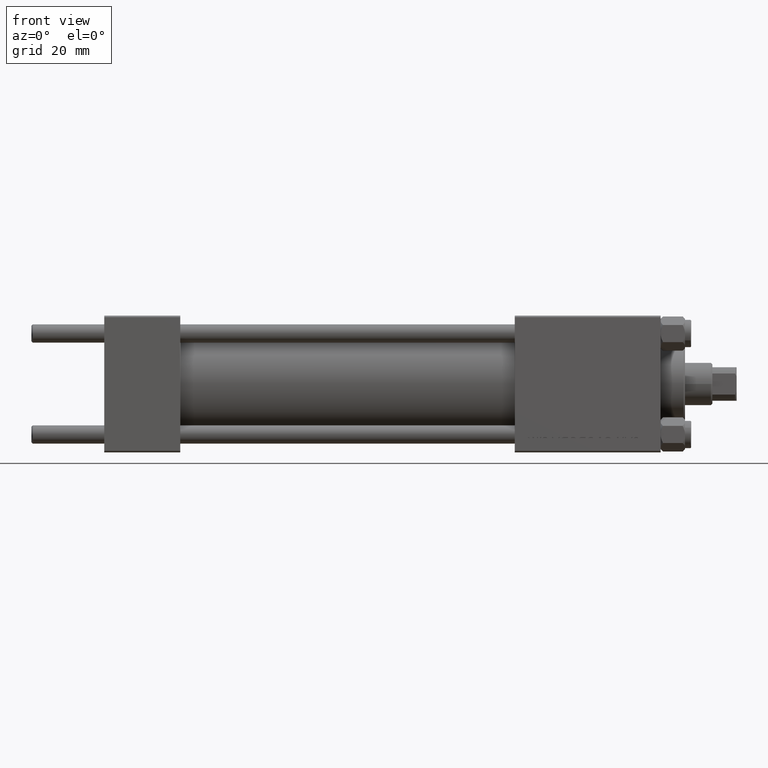
[diagram: clean part render]
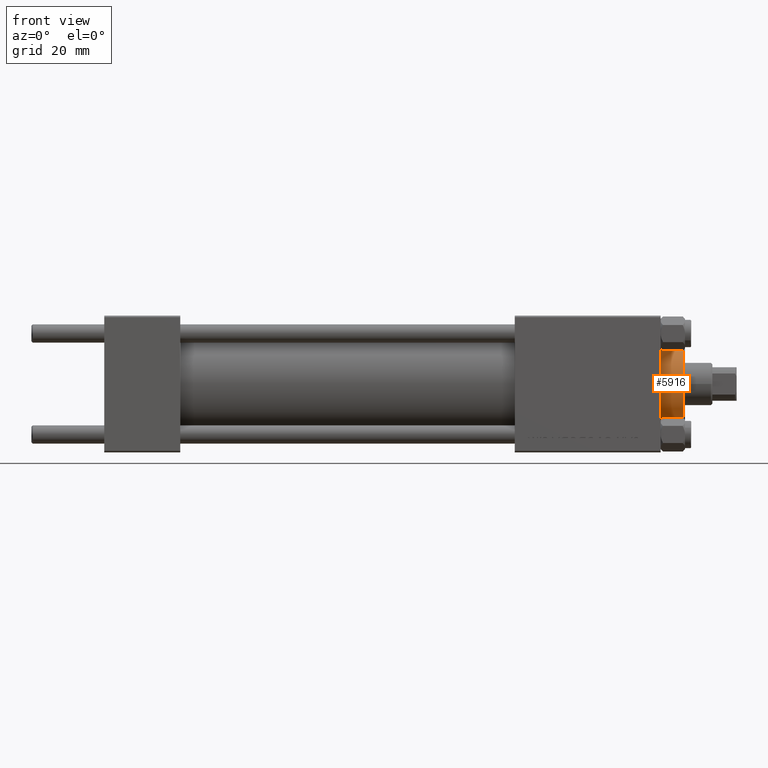
[diagram: same view with one face highlighted and labeled with its STEP entity id]
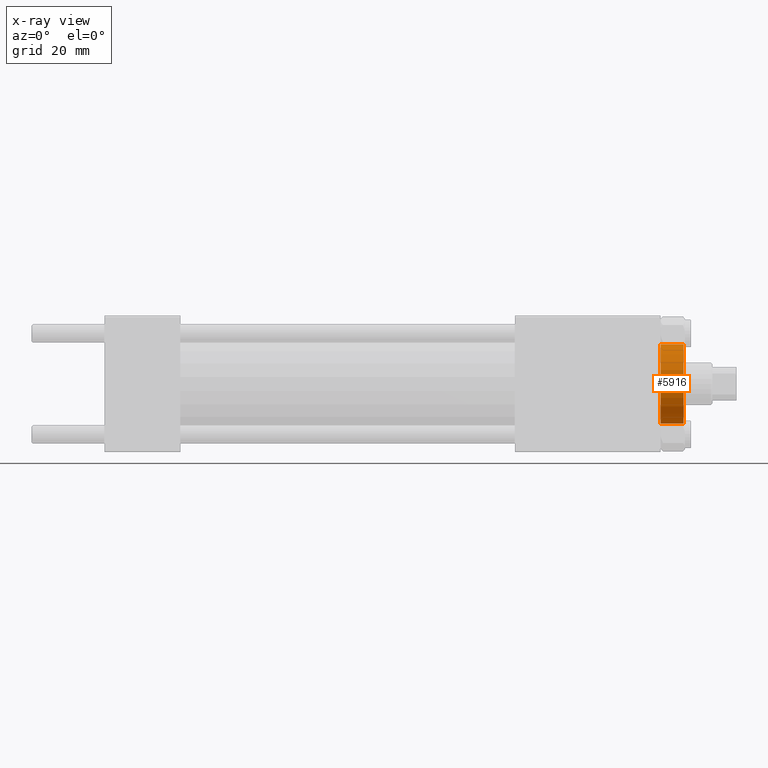
[diagram: x-ray of the same camera — body ghosted, the highlighted face saturated]
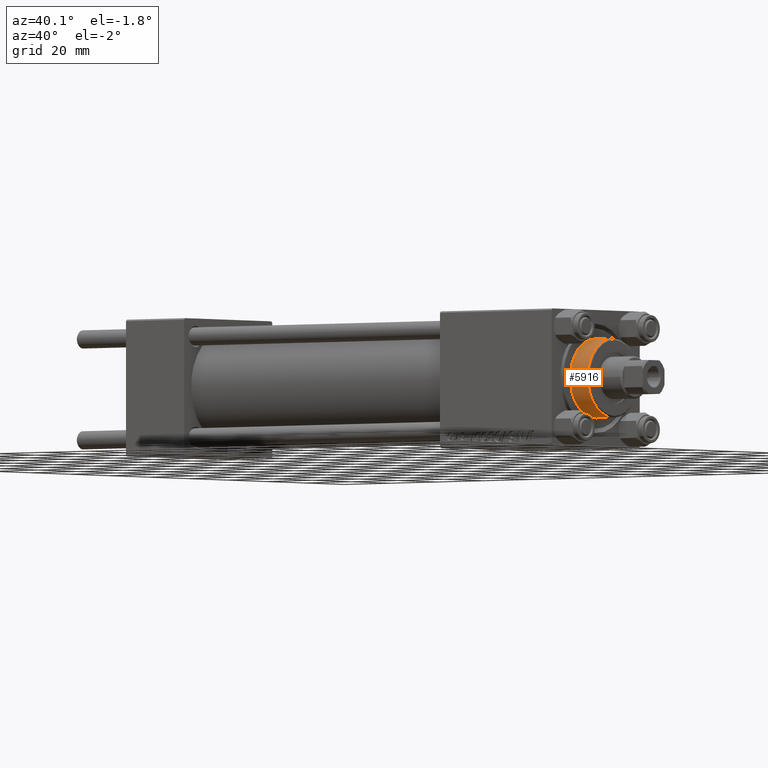
[diagram: same view with one face highlighted and labeled with its STEP entity id]
A machine part, front view. The second image highlights one B-rep face of the part: STEP entity #5916.
The next image is the same camera in x-ray: the body ghosted, the highlighted face saturated — about 0% of this face is hidden behind the body in this view.
A second angle (auxiliary view) of the same face is appended — the face is thin or edge-on in the first view.
In plain terms, the highlighted cylindrical surface (partial cylindrical patch) has radius 13 mm, axis along (-1, -0, 0).
Its self-contained STEP definition (entity closure, byte-faithful):
#1320 = CARTESIAN_POINT ( 'NONE',  ( 0.000000000000000000, 0.000000000000000000, 28.69999999999999929 ) ) ;
#2934 = ORIENTED_EDGE ( 'NONE', *, *, #22814, .T. ) ;
#3250 = FACE_OUTER_BOUND ( 'NONE', #13367, .T. ) ;
#3500 = DIRECTION ( 'NONE',  ( -1.000000000000000000, 0.000000000000000000, 0.000000000000000000 ) ) ;
#5916 = ADVANCED_FACE ( 'NONE', ( #3250 ), #19152, .T. ) ;
#6127 = CARTESIAN_POINT ( 'NONE',  ( 13.00000000000000178, 1.592040838891559293E-15, 36.69999999999999574 ) ) ;
#7917 = DIRECTION ( 'NONE',  ( -0.000000000000000000, -0.000000000000000000, -1.000000000000000000 ) ) ;
#8129 = ORIENTED_EDGE ( 'NONE', *, *, #19110, .T. ) ;
#9529 = VERTEX_POINT ( 'NONE', #31443 ) ;
#11561 = AXIS2_PLACEMENT_3D ( 'NONE', #1320, #47461, #12901 ) ;
#12063 = DIRECTION ( 'NONE',  ( -0.000000000000000000, -0.000000000000000000, -1.000000000000000000 ) ) ;
#12901 = DIRECTION ( 'NONE',  ( 1.000000000000000000, 0.000000000000000000, 0.000000000000000000 ) ) ;
#13367 = EDGE_LOOP ( 'NONE', ( #18118, #8129, #2934, #30946 ) ) ;
#13450 = DIRECTION ( 'NONE',  ( -0.000000000000000000, -0.000000000000000000, -1.000000000000000000 ) ) ;
#14013 = CIRCLE ( 'NONE', #11561, 13.00000000000000178 ) ;
#17273 = CARTESIAN_POINT ( 'NONE',  ( 0.000000000000000000, 0.000000000000000000, 36.20000000000000995 ) ) ;
#17458 = AXIS2_PLACEMENT_3D ( 'NONE', #18891, #12063, #3500 ) ;
#18118 = ORIENTED_EDGE ( 'NONE', *, *, #31565, .F. ) ;
#18891 = CARTESIAN_POINT ( 'NONE',  ( 0.000000000000000000, 0.000000000000000000, 36.69999999999999574 ) ) ;
#19110 = EDGE_CURVE ( 'NONE', #26548, #42038, #40455, .T. ) ;
#19152 = CYLINDRICAL_SURFACE ( 'NONE', #17458, 13.00000000000000178 ) ;
#20011 = CARTESIAN_POINT ( 'NONE',  ( -13.00000000000000178, 0.000000000000000000, 36.20000000000000995 ) ) ;
#22814 = EDGE_CURVE ( 'NONE', #42038, #9529, #29917, .T. ) ;
#25668 = EDGE_CURVE ( 'NONE', #9529, #47458, #14013, .T. ) ;
#26548 = VERTEX_POINT ( 'NONE', #48210 ) ;
#29917 = LINE ( 'NONE', #42940, #46908 ) ;
#30946 = ORIENTED_EDGE ( 'NONE', *, *, #25668, .T. ) ;
#31443 = CARTESIAN_POINT ( 'NONE',  ( -13.00000000000000178, 0.000000000000000000, 28.69999999999999929 ) ) ;
#31565 = EDGE_CURVE ( 'NONE', #26548, #47458, #48244, .T. ) ;
#32648 = DIRECTION ( 'NONE',  ( 1.000000000000000000, 0.000000000000000000, 0.000000000000000000 ) ) ;
#34510 = CARTESIAN_POINT ( 'NONE',  ( 13.00000000000000178, 1.592040838891559293E-15, 28.69999999999999929 ) ) ;
#34833 = AXIS2_PLACEMENT_3D ( 'NONE', #17273, #44485, #32648 ) ;
#40455 = CIRCLE ( 'NONE', #34833, 13.00000000000000178 ) ;
#42038 = VERTEX_POINT ( 'NONE', #20011 ) ;
#42940 = CARTESIAN_POINT ( 'NONE',  ( -13.00000000000000178, 0.000000000000000000, 36.69999999999999574 ) ) ;
#43947 = VECTOR ( 'NONE', #13450, 1000.000000000000000 ) ;
#44485 = DIRECTION ( 'NONE',  ( 0.000000000000000000, 0.000000000000000000, -1.000000000000000000 ) ) ;
#46908 = VECTOR ( 'NONE', #7917, 1000.000000000000000 ) ;
#47458 = VERTEX_POINT ( 'NONE', #34510 ) ;
#47461 = DIRECTION ( 'NONE',  ( 0.000000000000000000, 0.000000000000000000, 1.000000000000000000 ) ) ;
#48210 = CARTESIAN_POINT ( 'NONE',  ( 13.00000000000000178, 1.592040838891559293E-15, 36.20000000000000995 ) ) ;
#48244 = LINE ( 'NONE', #6127, #43947 ) ;